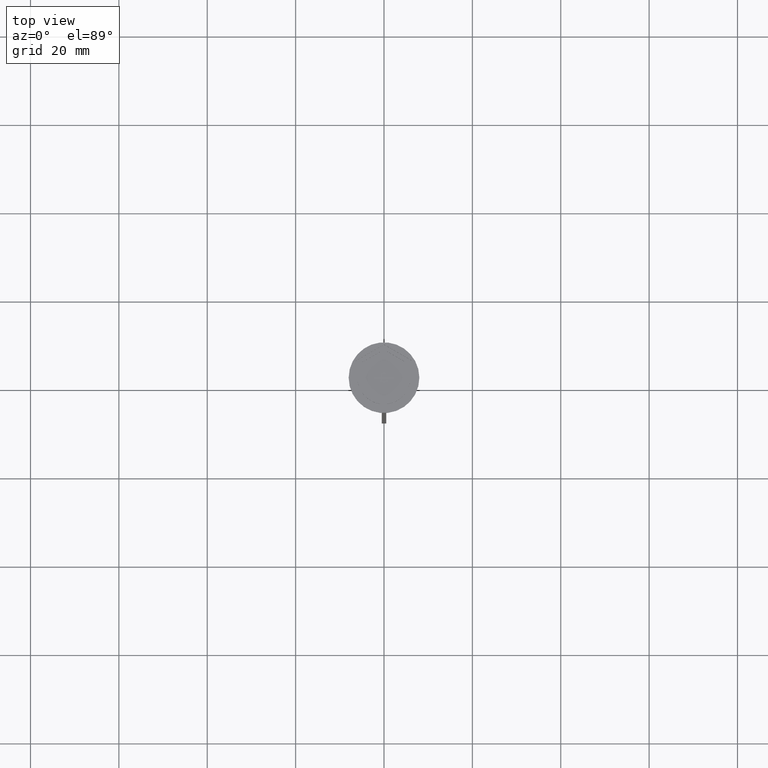
[diagram: clean part render]
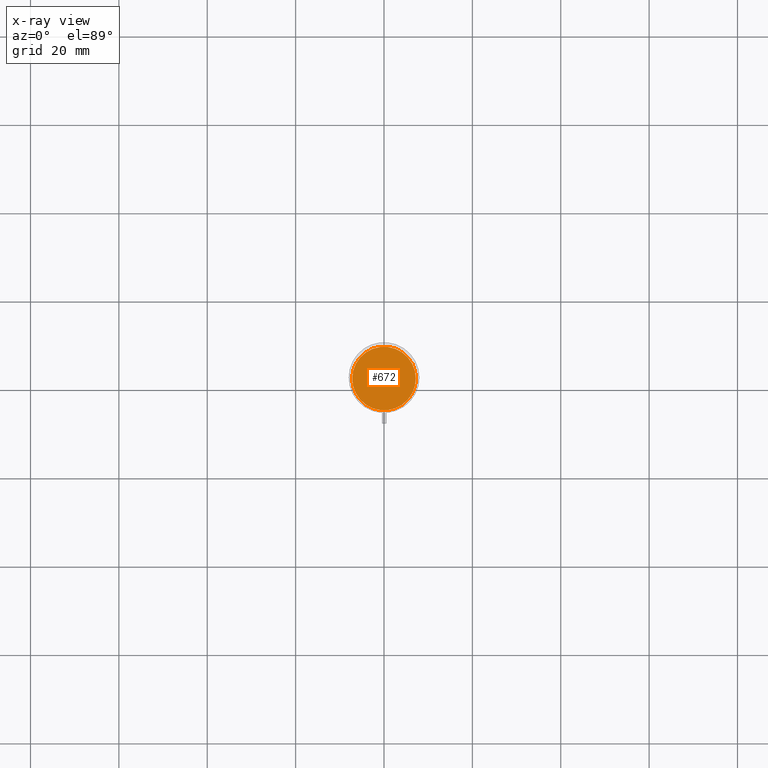
[diagram: x-ray — body ghosted, one internal face saturated and labeled with its STEP entity id]
A machine part, top view, then the same camera in x-ray: the body is ghosted and one INTERNAL B-rep face — a face not visible from any outside direction — is saturated and labeled: STEP entity #672.
In plain terms, the highlighted planar face has unit normal (0, 0, -1).
Its self-contained STEP definition (entity closure, byte-faithful):
#144 = CARTESIAN_POINT ( 'NONE',  ( 0.000000000000000000, 0.000000000000000000, -12.00000000000000000 ) ) ;
#198 = DIRECTION ( 'NONE',  ( -1.000000000000000000, 0.000000000000000000, 0.000000000000000000 ) ) ;
#403 = ORIENTED_EDGE ( 'NONE', *, *, #1871, .T. ) ;
#672 = ADVANCED_FACE ( 'NONE', ( #696 ), #1102, .F. ) ;
#696 = FACE_OUTER_BOUND ( 'NONE', #1352, .T. ) ;
#719 = DIRECTION ( 'NONE',  ( -1.000000000000000000, 0.000000000000000000, -0.000000000000000000 ) ) ;
#769 = EDGE_CURVE ( 'NONE', #1340, #857, #1862, .T. ) ;
#857 = VERTEX_POINT ( 'NONE', #1781 ) ;
#998 = DIRECTION ( 'NONE',  ( -0.000000000000000000, -0.000000000000000000, 1.000000000000000000 ) ) ;
#1102 = PLANE ( 'NONE',  #1636 ) ;
#1187 = CARTESIAN_POINT ( 'NONE',  ( -7.200000000000001954, 0.000000000000000000, -12.00000000000000000 ) ) ;
#1275 = AXIS2_PLACEMENT_3D ( 'NONE', #144, #998, #2289 ) ;
#1340 = VERTEX_POINT ( 'NONE', #1187 ) ;
#1352 = EDGE_LOOP ( 'NONE', ( #1715, #403 ) ) ;
#1636 = AXIS2_PLACEMENT_3D ( 'NONE', #1670, #2439, #719 ) ;
#1670 = CARTESIAN_POINT ( 'NONE',  ( 0.000000000000000000, 0.000000000000000000, -12.00000000000000000 ) ) ;
#1701 = AXIS2_PLACEMENT_3D ( 'NONE', #1926, #1733, #198 ) ;
#1715 = ORIENTED_EDGE ( 'NONE', *, *, #769, .T. ) ;
#1733 = DIRECTION ( 'NONE',  ( -0.000000000000000000, -0.000000000000000000, 1.000000000000000000 ) ) ;
#1781 = CARTESIAN_POINT ( 'NONE',  ( 7.200000000000001954, 9.001153973733047589E-16, -12.00000000000000000 ) ) ;
#1862 = CIRCLE ( 'NONE', #1701, 7.200000000000001954 ) ;
#1871 = EDGE_CURVE ( 'NONE', #857, #1340, #2199, .T. ) ;
#1926 = CARTESIAN_POINT ( 'NONE',  ( 0.000000000000000000, 0.000000000000000000, -12.00000000000000000 ) ) ;
#2199 = CIRCLE ( 'NONE', #1275, 7.200000000000001954 ) ;
#2289 = DIRECTION ( 'NONE',  ( -1.000000000000000000, 0.000000000000000000, 0.000000000000000000 ) ) ;
#2439 = DIRECTION ( 'NONE',  ( 0.000000000000000000, 0.000000000000000000, -1.000000000000000000 ) ) ;